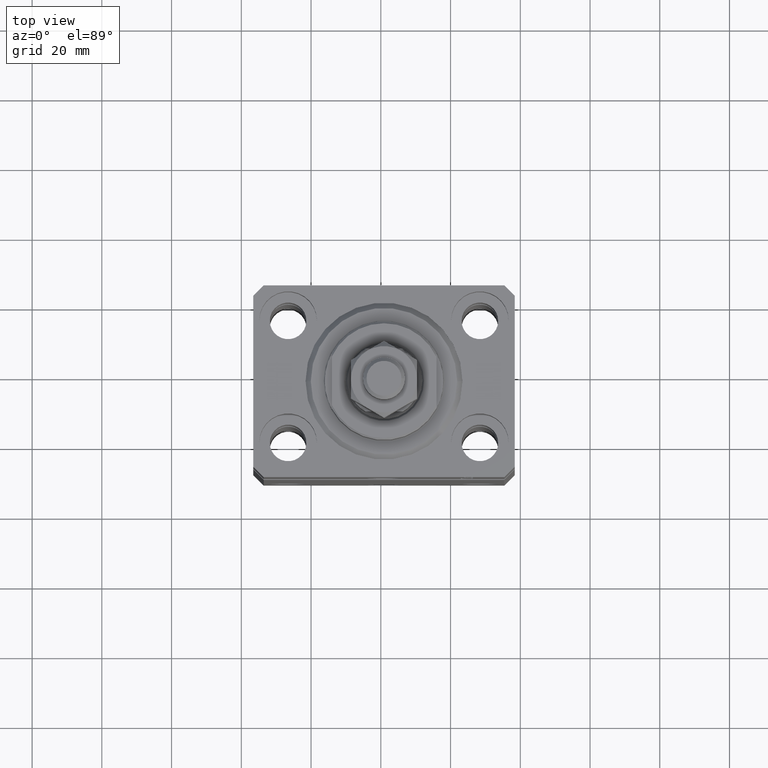
[diagram: clean part render]
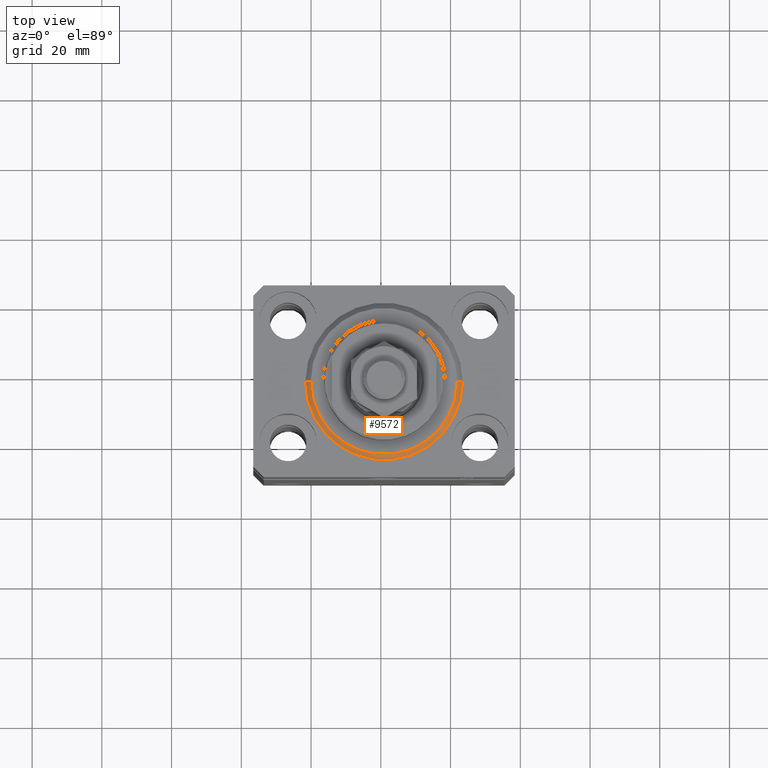
[diagram: same view with one face highlighted and labeled with its STEP entity id]
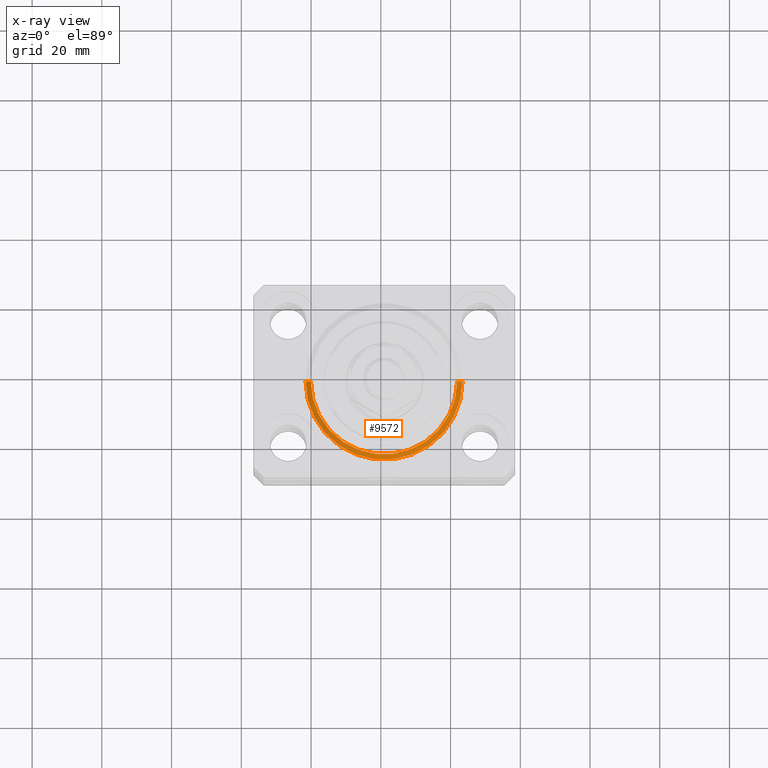
[diagram: x-ray of the same camera — body ghosted, the highlighted face saturated]
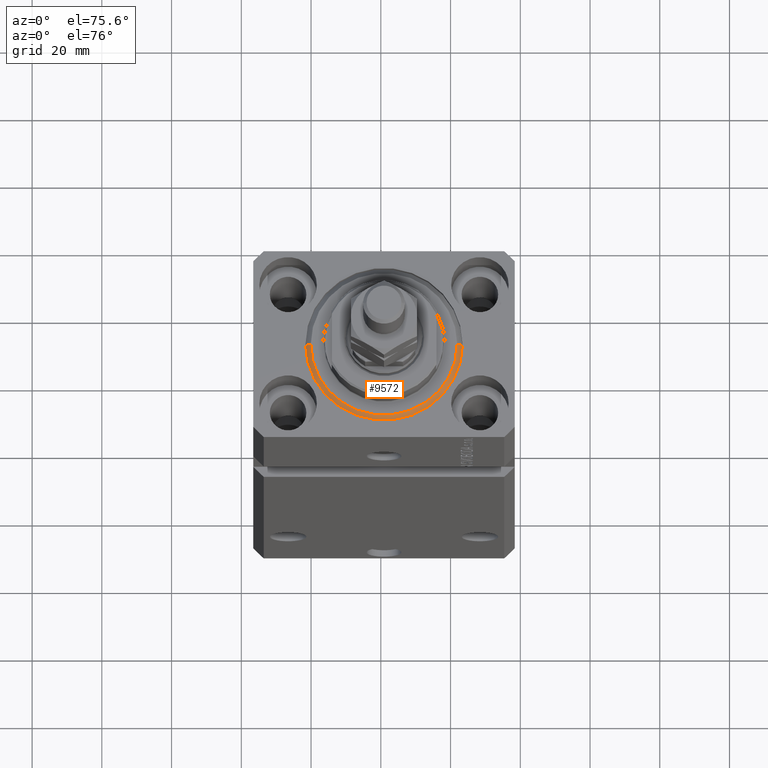
[diagram: same view with one face highlighted and labeled with its STEP entity id]
A machine part, top view. The second image highlights one B-rep face of the part: STEP entity #9572.
The next image is the same camera in x-ray: the body ghosted, the highlighted face saturated — about 0% of this face is hidden behind the body in this view.
A second angle (auxiliary view) of the same face is appended — the face is thin or edge-on in the first view.
In plain terms, the highlighted conical surface has half-angle 45 deg.
Its self-contained STEP definition (entity closure, byte-faithful):
#1126 = CARTESIAN_POINT ( 'NONE',  ( 0.000000000000000000, 0.000000000000000000, 1.500000000000001332 ) ) ;
#1398 = CARTESIAN_POINT ( 'NONE',  ( -22.50000000000000355, 2.755455298081545172E-15, 1.500000000000001332 ) ) ;
#1473 = DIRECTION ( 'NONE',  ( 1.000000000000000000, 0.000000000000000000, 0.000000000000000000 ) ) ;
#2457 = EDGE_CURVE ( 'NONE', #23769, #35109, #29859, .T. ) ;
#4745 = EDGE_CURVE ( 'NONE', #17289, #37041, #17581, .T. ) ;
#4974 = CARTESIAN_POINT ( 'NONE',  ( 0.000000000000000000, 0.000000000000000000, 0.000000000000000000 ) ) ;
#5823 = EDGE_CURVE ( 'NONE', #17289, #23769, #31625, .T. ) ;
#8501 = VECTOR ( 'NONE', #36421, 1000.000000000000114 ) ;
#9354 = AXIS2_PLACEMENT_3D ( 'NONE', #24750, #39027, #21250 ) ;
#9572 = ADVANCED_FACE ( 'NONE', ( #21482 ), #16044, .T. ) ;
#10945 = ORIENTED_EDGE ( 'NONE', *, *, #5823, .F. ) ;
#11589 = ORIENTED_EDGE ( 'NONE', *, *, #39021, .F. ) ;
#12212 = AXIS2_PLACEMENT_3D ( 'NONE', #1126, #36604, #22800 ) ;
#14081 = CARTESIAN_POINT ( 'NONE',  ( 22.50000000000000355, 0.000000000000000000, 1.500000000000001332 ) ) ;
#16044 = CONICAL_SURFACE ( 'NONE', #9354, 22.50000000000000355, 0.7853981633974517207 ) ;
#16719 = CIRCLE ( 'NONE', #12212, 22.50000000000000355 ) ;
#17289 = VERTEX_POINT ( 'NONE', #18579 ) ;
#17581 = LINE ( 'NONE', #14081, #20450 ) ;
#18579 = CARTESIAN_POINT ( 'NONE',  ( 20.99999999999998934, 0.000000000000000000, 0.000000000000000000 ) ) ;
#18728 = DIRECTION ( 'NONE',  ( -0.000000000000000000, -0.000000000000000000, -1.000000000000000000 ) ) ;
#18789 = CARTESIAN_POINT ( 'NONE',  ( -20.99999999999998934, 2.663606788145492628E-15, 0.000000000000000000 ) ) ;
#19157 = ORIENTED_EDGE ( 'NONE', *, *, #4745, .T. ) ;
#20450 = VECTOR ( 'NONE', #42585, 1000.000000000000114 ) ;
#21051 = EDGE_LOOP ( 'NONE', ( #28970, #10945, #19157, #11589 ) ) ;
#21127 = CARTESIAN_POINT ( 'NONE',  ( -22.50000000000000355, 0.000000000000000000, 1.500000000000001332 ) ) ;
#21250 = DIRECTION ( 'NONE',  ( 1.000000000000000000, 0.000000000000000000, 0.000000000000000000 ) ) ;
#21482 = FACE_OUTER_BOUND ( 'NONE', #21051, .T. ) ;
#22800 = DIRECTION ( 'NONE',  ( 1.000000000000000000, 0.000000000000000000, 0.000000000000000000 ) ) ;
#23769 = VERTEX_POINT ( 'NONE', #18789 ) ;
#24425 = CARTESIAN_POINT ( 'NONE',  ( 22.50000000000000355, 2.755455298081545172E-15, 1.500000000000001332 ) ) ;
#24750 = CARTESIAN_POINT ( 'NONE',  ( 0.000000000000000000, 0.000000000000000000, 1.500000000000001332 ) ) ;
#24864 = AXIS2_PLACEMENT_3D ( 'NONE', #4974, #18728, #1473 ) ;
#28970 = ORIENTED_EDGE ( 'NONE', *, *, #2457, .F. ) ;
#29859 = LINE ( 'NONE', #1398, #8501 ) ;
#31625 = CIRCLE ( 'NONE', #24864, 20.99999999999998934 ) ;
#35109 = VERTEX_POINT ( 'NONE', #21127 ) ;
#36421 = DIRECTION ( 'NONE',  ( -0.7071067811865500152, 8.659560562354963673E-17, 0.7071067811865451302 ) ) ;
#36604 = DIRECTION ( 'NONE',  ( -0.000000000000000000, -0.000000000000000000, 1.000000000000000000 ) ) ;
#37041 = VERTEX_POINT ( 'NONE', #24425 ) ;
#39021 = EDGE_CURVE ( 'NONE', #35109, #37041, #16719, .T. ) ;
#39027 = DIRECTION ( 'NONE',  ( -0.000000000000000000, -0.000000000000000000, 1.000000000000000000 ) ) ;
#42585 = DIRECTION ( 'NONE',  ( 0.7071067811865500152, 0.000000000000000000, 0.7071067811865451302 ) ) ;